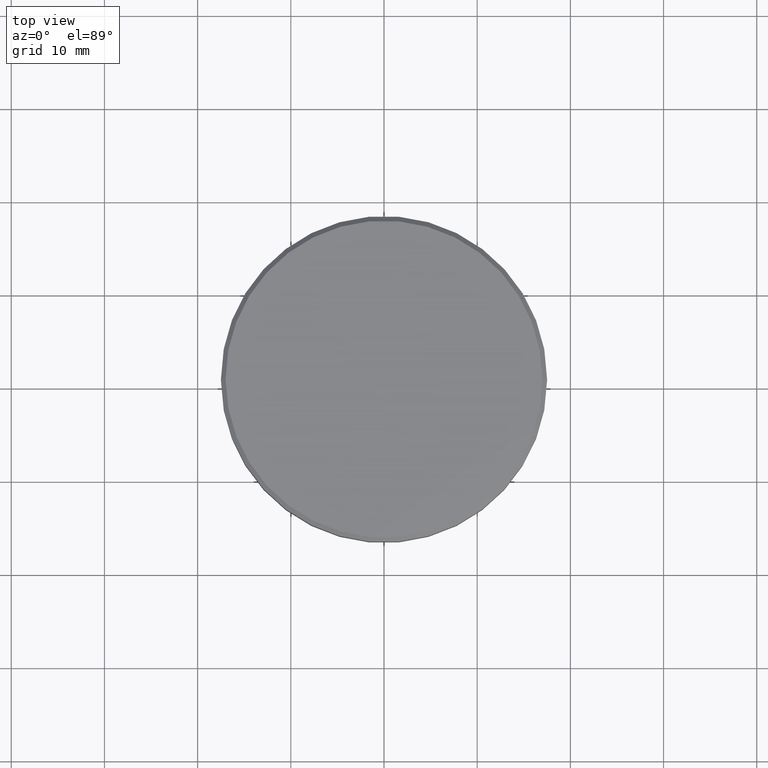
[diagram: clean part render]
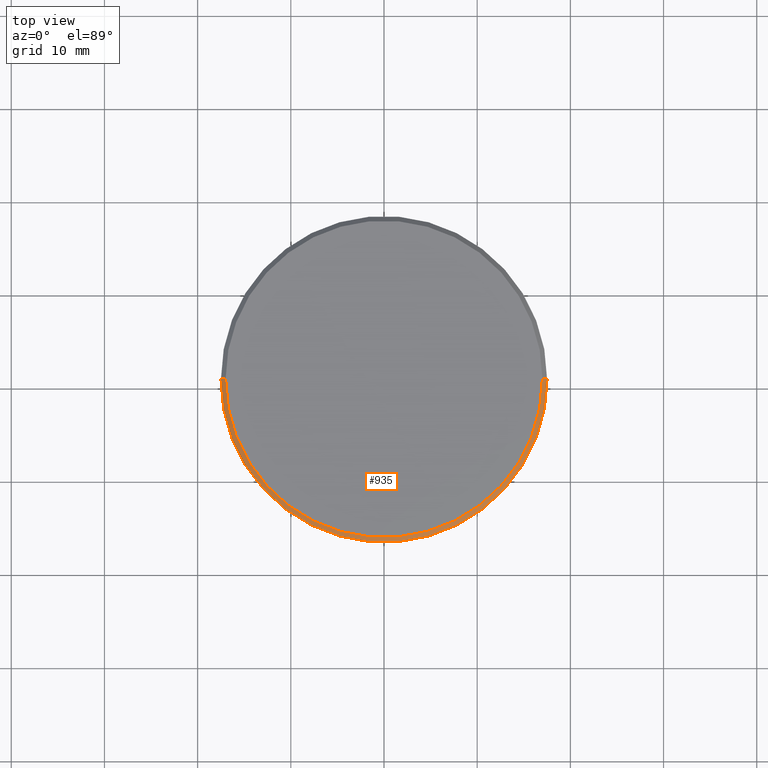
[diagram: same view with one face highlighted and labeled with its STEP entity id]
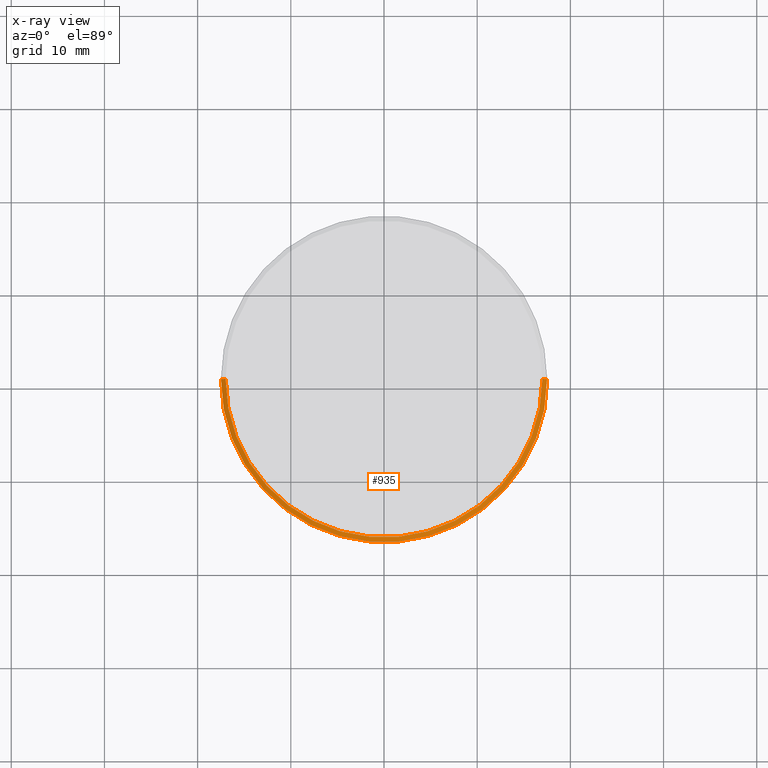
[diagram: x-ray of the same camera — body ghosted, the highlighted face saturated]
A machine part, top view. The second image highlights one B-rep face of the part: STEP entity #935.
The next image is the same camera in x-ray: the body ghosted, the highlighted face saturated — about 0% of this face is hidden behind the body in this view.
In plain terms, the highlighted conical surface has half-angle 45 deg.
Its self-contained STEP definition (entity closure, byte-faithful):
#19 = EDGE_CURVE ( 'NONE', #454, #535, #562, .T. ) ;
#43 = LINE ( 'NONE', #774, #258 ) ;
#87 = CIRCLE ( 'NONE', #150, 17.50000000000000000 ) ;
#150 = AXIS2_PLACEMENT_3D ( 'NONE', #396, #1049, #686 ) ;
#193 = CARTESIAN_POINT ( 'NONE',  ( 17.50000000000000000, 0.000000000000000000, -0.5000000000000143219 ) ) ;
#203 = AXIS2_PLACEMENT_3D ( 'NONE', #841, #757, #215 ) ;
#215 = DIRECTION ( 'NONE',  ( -1.000000000000000000, 0.000000000000000000, 0.000000000000000000 ) ) ;
#245 = CARTESIAN_POINT ( 'NONE',  ( -17.50000000000000000, 2.143131898507868248E-15, -0.5000000000000143219 ) ) ;
#258 = VECTOR ( 'NONE', #678, 1000.000000000000000 ) ;
#266 = DIRECTION ( 'NONE',  ( -0.000000000000000000, -0.000000000000000000, 1.000000000000000000 ) ) ;
#396 = CARTESIAN_POINT ( 'NONE',  ( 0.000000000000000000, 0.000000000000000000, -0.5000000000000143219 ) ) ;
#408 = ORIENTED_EDGE ( 'NONE', *, *, #19, .F. ) ;
#410 = CARTESIAN_POINT ( 'NONE',  ( 16.99999999999997868, 2.112515728529183278E-15, 0.000000000000000000 ) ) ;
#419 = ORIENTED_EDGE ( 'NONE', *, *, #1148, .F. ) ;
#454 = VERTEX_POINT ( 'NONE', #410 ) ;
#504 = CIRCLE ( 'NONE', #621, 16.99999999999997868 ) ;
#535 = VERTEX_POINT ( 'NONE', #193 ) ;
#549 = ORIENTED_EDGE ( 'NONE', *, *, #1146, .T. ) ;
#562 = LINE ( 'NONE', #730, #1135 ) ;
#576 = DIRECTION ( 'NONE',  ( 0.7071067811865524577, 8.659560562354994488E-17, -0.7071067811865426878 ) ) ;
#612 = VERTEX_POINT ( 'NONE', #245 ) ;
#621 = AXIS2_PLACEMENT_3D ( 'NONE', #623, #266, #632 ) ;
#623 = CARTESIAN_POINT ( 'NONE',  ( 0.000000000000000000, 0.000000000000000000, 0.000000000000000000 ) ) ;
#632 = DIRECTION ( 'NONE',  ( 1.000000000000000000, 0.000000000000000000, 0.000000000000000000 ) ) ;
#642 = CONICAL_SURFACE ( 'NONE', #203, 16.99999999999997868, 0.7853981633974552734 ) ;
#678 = DIRECTION ( 'NONE',  ( -0.7071067811865524577, 0.000000000000000000, -0.7071067811865426878 ) ) ;
#686 = DIRECTION ( 'NONE',  ( 1.000000000000000000, 0.000000000000000000, 0.000000000000000000 ) ) ;
#710 = VERTEX_POINT ( 'NONE', #1152 ) ;
#730 = CARTESIAN_POINT ( 'NONE',  ( 16.99999999999997868, 2.081899558550498307E-15, 0.000000000000000000 ) ) ;
#741 = ORIENTED_EDGE ( 'NONE', *, *, #808, .F. ) ;
#757 = DIRECTION ( 'NONE',  ( 0.000000000000000000, 0.000000000000000000, -1.000000000000000000 ) ) ;
#774 = CARTESIAN_POINT ( 'NONE',  ( -16.99999999999997868, 0.000000000000000000, 0.000000000000000000 ) ) ;
#808 = EDGE_CURVE ( 'NONE', #710, #454, #504, .T. ) ;
#841 = CARTESIAN_POINT ( 'NONE',  ( 0.000000000000000000, 0.000000000000000000, 0.000000000000000000 ) ) ;
#935 = ADVANCED_FACE ( 'NONE', ( #1129 ), #642, .T. ) ;
#999 = EDGE_LOOP ( 'NONE', ( #408, #741, #549, #419 ) ) ;
#1049 = DIRECTION ( 'NONE',  ( 0.000000000000000000, 0.000000000000000000, -1.000000000000000000 ) ) ;
#1129 = FACE_OUTER_BOUND ( 'NONE', #999, .T. ) ;
#1135 = VECTOR ( 'NONE', #576, 1000.000000000000000 ) ;
#1146 = EDGE_CURVE ( 'NONE', #710, #612, #43, .T. ) ;
#1148 = EDGE_CURVE ( 'NONE', #535, #612, #87, .T. ) ;
#1152 = CARTESIAN_POINT ( 'NONE',  ( -16.99999999999997868, 0.000000000000000000, 0.000000000000000000 ) ) ;